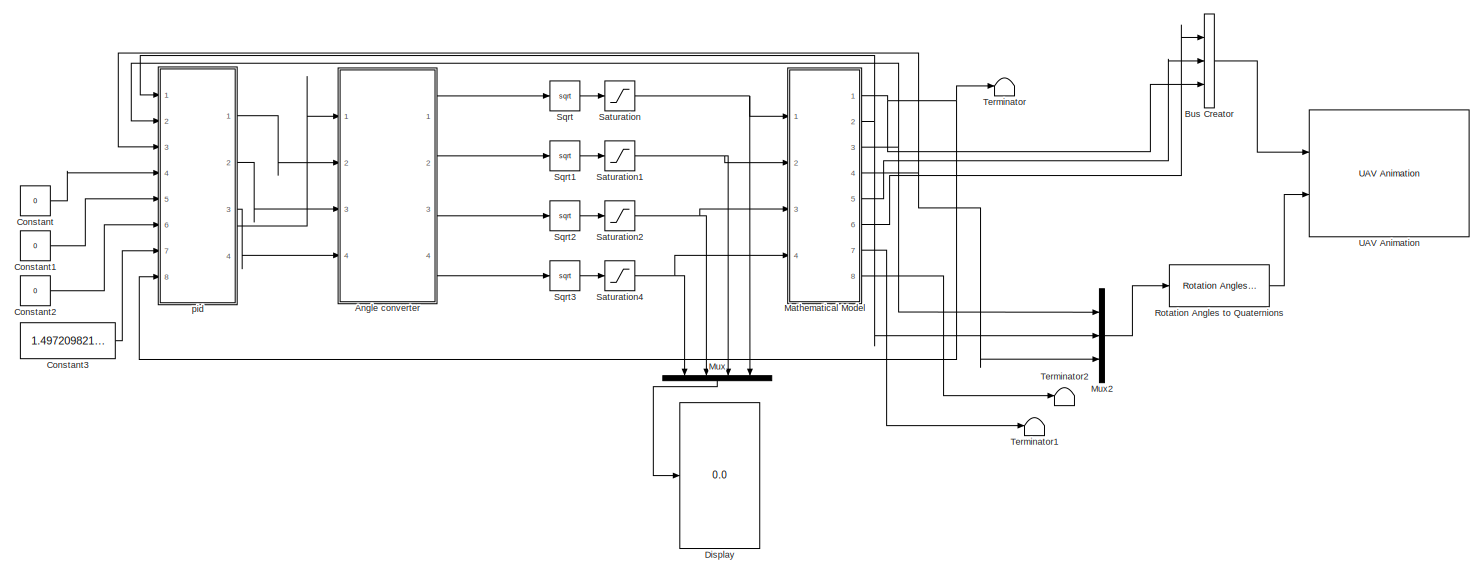
[diagram: root canvas - part 1/2, most of the canvas]
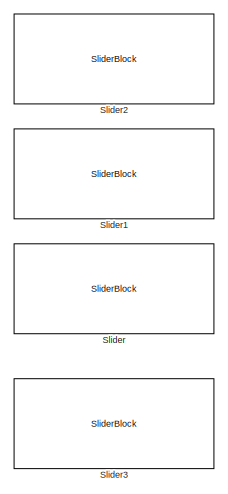
[diagram: root canvas - part 2/2, left side, full height]
MODEL slx_a05d7fcb3b3f
KIND model
CONFIG AbsTol = auto
CONFIG EnableMultiTasking = off
CONFIG FixedStep = auto
CONFIG MaxStep = auto
CONFIG MinStep = auto
CONFIG RelTol = 1e-3
CONFIG SampleTimeConstraint = Unconstrained
CONFIG Solver = VariableStepAuto
CONFIG SolverName = VariableStepAuto
CONFIG StartTime = 0.0
CONFIG StopTime = inf
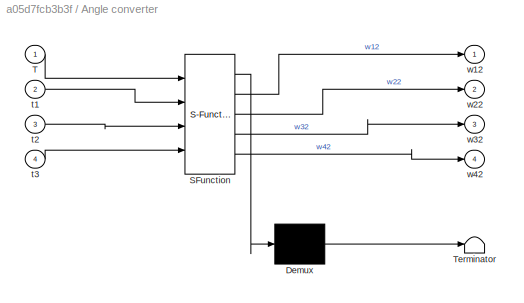
BLOCK [SubSystem] Angle converter
  ErrorFcn = Stateflow.Translate.translate
  PermitHierarchicalResolution = ExplicitOnly
  Ports = [4, 4]
  RequestExecContextInheritance = off
  SFBlockType = MATLAB Function
  TreatAsAtomicUnit = on
BLOCK [Demux] Angle converter/ Demux 
  Outputs = 1
  Ports = [1, 1]
BLOCK [S-Function] Angle converter/ SFunction 
  EnableBusSupport = on
  FunctionName = sf_sfun
  PortCounts = [4 5]
  Ports = [4, 5]
  SFcnIsStateOwnerBlock = off
  SFunctionDeploymentMode = off
  Tag = Stateflow S-Function 4
BLOCK [Terminator] Angle converter/ Terminator 
BLOCK [Inport] Angle converter/T
BLOCK [Inport] Angle converter/t1
  Port = 2
BLOCK [Inport] Angle converter/t2
  Port = 3
BLOCK [Inport] Angle converter/t3
  Port = 4
BLOCK [Outport] Angle converter/w12
BLOCK [Outport] Angle converter/w22
  Port = 2
BLOCK [Outport] Angle converter/w32
  Port = 3
BLOCK [Outport] Angle converter/w42
  Port = 4
BLOCK [BusCreator] Bus Creator
  DisplayOption = bar
  InheritFromInputs = on
  Inputs = 3
  Ports = [3, 1]
BLOCK [Constant] Constant
  Value = 0
BLOCK [Constant] Constant1
  Value = 0
BLOCK [Constant] Constant2
  Value = 0
BLOCK [Constant] Constant3
  Value = 1.497209821428571
BLOCK [Display] Display
  Decimation = 1
  Ports = [1]
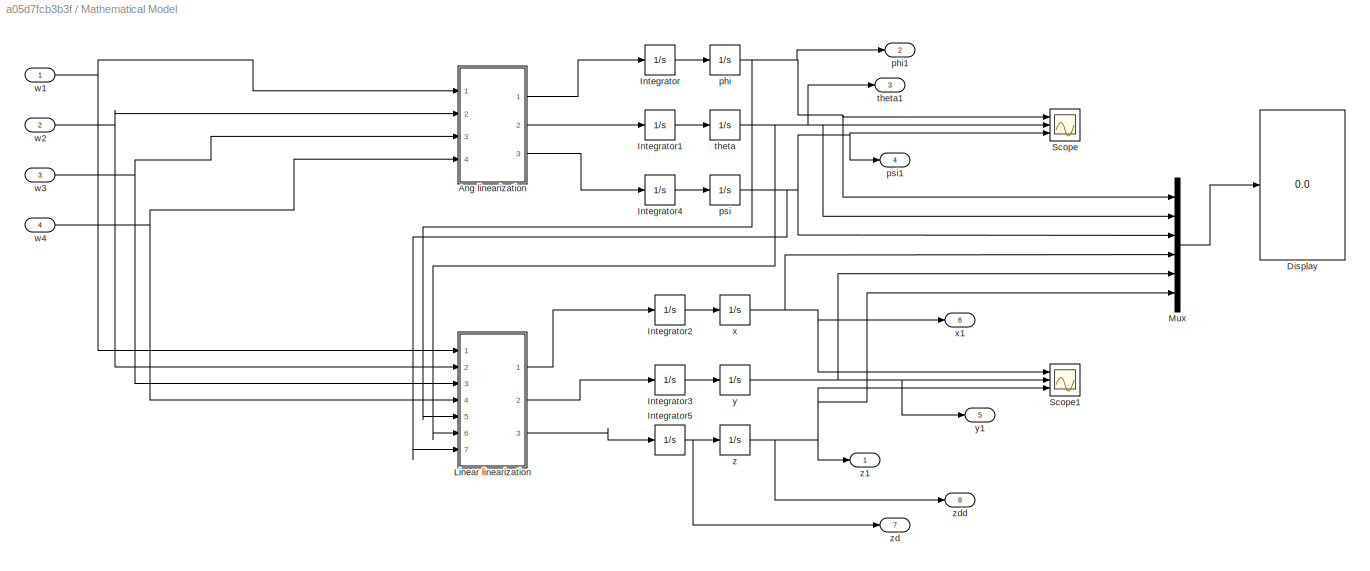
BLOCK [SubSystem] Mathematical Model
  Ports = [4, 8]
  RequestExecContextInheritance = off
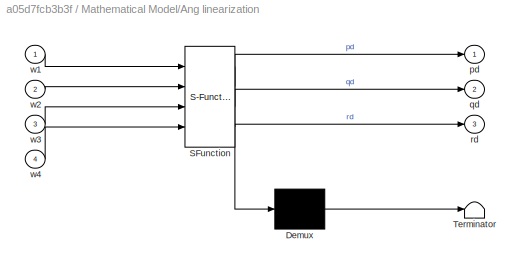
BLOCK [SubSystem] Mathematical Model/Ang linearization
  ErrorFcn = Stateflow.Translate.translate
  PermitHierarchicalResolution = ExplicitOnly
  Ports = [4, 3]
  RequestExecContextInheritance = off
  SFBlockType = MATLAB Function
  TreatAsAtomicUnit = on
BLOCK [Demux] Mathematical Model/Ang linearization/ Demux 
  Outputs = 1
  Ports = [1, 1]
BLOCK [S-Function] Mathematical Model/Ang linearization/ SFunction 
  EnableBusSupport = on
  FunctionName = sf_sfun
  PortCounts = [4 4]
  Ports = [4, 4]
  SFcnIsStateOwnerBlock = off
  SFunctionDeploymentMode = off
  Tag = Stateflow S-Function 2
BLOCK [Terminator] Mathematical Model/Ang linearization/ Terminator 
BLOCK [Outport] Mathematical Model/Ang linearization/pd
BLOCK [Outport] Mathematical Model/Ang linearization/qd
  Port = 2
BLOCK [Outport] Mathematical Model/Ang linearization/rd
  Port = 3
BLOCK [Inport] Mathematical Model/Ang linearization/w1
BLOCK [Inport] Mathematical Model/Ang linearization/w2
  Port = 2
BLOCK [Inport] Mathematical Model/Ang linearization/w3
  Port = 3
BLOCK [Inport] Mathematical Model/Ang linearization/w4
  Port = 4
BLOCK [Display] Mathematical Model/Display
  Decimation = 1
  Ports = [1]
BLOCK [Integrator] Mathematical Model/Integrator
  Ports = [1, 1]
BLOCK [Integrator] Mathematical Model/Integrator1
  Ports = [1, 1]
BLOCK [Integrator] Mathematical Model/Integrator2
  Ports = [1, 1]
BLOCK [Integrator] Mathematical Model/Integrator3
  Ports = [1, 1]
BLOCK [Integrator] Mathematical Model/Integrator4
  Ports = [1, 1]
BLOCK [Integrator] Mathematical Model/Integrator5
  Ports = [1, 1]
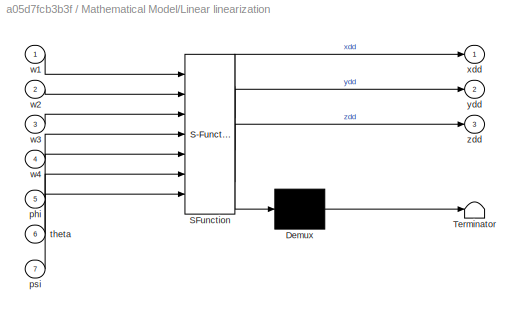
BLOCK [SubSystem] Mathematical Model/Linear linearization
  ErrorFcn = Stateflow.Translate.translate
  PermitHierarchicalResolution = ExplicitOnly
  Ports = [7, 3]
  RequestExecContextInheritance = off
  SFBlockType = MATLAB Function
  TreatAsAtomicUnit = on
BLOCK [Demux] Mathematical Model/Linear linearization/ Demux 
  Outputs = 1
  Ports = [1, 1]
BLOCK [S-Function] Mathematical Model/Linear linearization/ SFunction 
  EnableBusSupport = on
  FunctionName = sf_sfun
  PortCounts = [7 4]
  Ports = [7, 4]
  SFcnIsStateOwnerBlock = off
  SFunctionDeploymentMode = off
  Tag = Stateflow S-Function 1
BLOCK [Terminator] Mathematical Model/Linear linearization/ Terminator 
BLOCK [Inport] Mathematical Model/Linear linearization/phi
  Port = 5
BLOCK [Inport] Mathematical Model/Linear linearization/psi
  Port = 7
BLOCK [Inport] Mathematical Model/Linear linearization/theta
  Port = 6
BLOCK [Inport] Mathematical Model/Linear linearization/w1
BLOCK [Inport] Mathematical Model/Linear linearization/w2
  Port = 2
BLOCK [Inport] Mathematical Model/Linear linearization/w3
  Port = 3
BLOCK [Inport] Mathematical Model/Linear linearization/w4
  Port = 4
BLOCK [Outport] Mathematical Model/Linear linearization/xdd
BLOCK [Outport] Mathematical Model/Linear linearization/ydd
  Port = 2
BLOCK [Outport] Mathematical Model/Linear linearization/zdd
  Port = 3
BLOCK [Mux] Mathematical Model/Mux
  DisplayOption = bar
  Inputs = 6
  Ports = [6, 1]
BLOCK [Scope] Mathematical Model/Scope
  Floating = off
  NumInputPorts = 3
  Ports = [3]
  ScopeSpecificationString = Simulink.scopes.TimeScopeBlockCfg('CurrentConfiguration', extmgr.ConfigurationSet(extmgr.Configuration('Core','General UI',true),extmgr.Configuration('Core','Source UI',true),extmgr.Configuration('Sources','WiredSimulink',true),extmgr.Configuration('Visuals','Time Domain',true,'SerializedDisplays',{struct('MinYLimReal','-1.00000','MaxYLimReal','1.00000','YLabelReal','','MinYLimMag','0.00000','MaxY...<+1368ch>
BLOCK [Scope] Mathematical Model/Scope1
  Floating = off
  NumInputPorts = 3
  Ports = [3]
  ScopeSpecificationString = Simulink.scopes.TimeScopeBlockCfg('CurrentConfiguration', extmgr.ConfigurationSet(extmgr.Configuration('Core','General UI',true),extmgr.Configuration('Core','Source UI',true),extmgr.Configuration('Sources','WiredSimulink',true,'DataLoggingVariableName','ScopeData1'),extmgr.Configuration('Visuals','Time Domain',true,'SerializedDisplays',{struct('MinYLimReal','-382990133158497.0625','MaxYLimReal','3...<+1511ch>
BLOCK [Integrator] Mathematical Model/phi
  Ports = [1, 1]
BLOCK [Outport] Mathematical Model/phi1
  Port = 2
BLOCK [Integrator] Mathematical Model/psi
  Ports = [1, 1]
BLOCK [Outport] Mathematical Model/psi1
  Port = 4
BLOCK [Integrator] Mathematical Model/theta
  Ports = [1, 1]
BLOCK [Outport] Mathematical Model/theta1
  Port = 3
BLOCK [Inport] Mathematical Model/w1
BLOCK [Inport] Mathematical Model/w2
  Port = 2
BLOCK [Inport] Mathematical Model/w3
  Port = 3
BLOCK [Inport] Mathematical Model/w4
  Port = 4
BLOCK [Integrator] Mathematical Model/x
  Ports = [1, 1]
BLOCK [Outport] Mathematical Model/x1
  Port = 6
BLOCK [Integrator] Mathematical Model/y
  Ports = [1, 1]
BLOCK [Outport] Mathematical Model/y1
  Port = 5
BLOCK [Integrator] Mathematical Model/z
  Ports = [1, 1]
BLOCK [Outport] Mathematical Model/z1
BLOCK [Outport] Mathematical Model/zd
  Port = 7
BLOCK [Outport] Mathematical Model/zdd
  Port = 8
BLOCK [Mux] Mux
  DisplayOption = bar
  NameLocation = left
  Ports = [4, 1]
BLOCK [Mux] Mux2
  DisplayOption = bar
  Inputs = 3
  Ports = [3, 1]
BLOCK [Reference] Rotation Angles to Quaternions  REF=sharedtransform/Rotation Angles to Quaternions
  AttributesFormatString = Rotation Order: %<rotationOrder>
  Ports = [1, 1]
  SourceBlock = sharedtransform/Rotation Angles to Quaternions
  SourceProductBaseCode = AE,PW,MT,VE,VP
  SourceType = Ang2Quat
BLOCK [Saturate] Saturation
  LowerLimit = 0
  UpperLimit = 8000
BLOCK [Saturate] Saturation1
  LowerLimit = 0
  UpperLimit = 8000
BLOCK [Saturate] Saturation2
  LowerLimit = 0
  UpperLimit = 8000
BLOCK [Saturate] Saturation4
  LowerLimit = 0
  UpperLimit = 8000
BLOCK [SliderBlock] Slider
  ScaleMax = 0.5236
  ScaleMin = -0.5236
BLOCK [SliderBlock] Slider1
  ScaleMax = 0.5236
  ScaleMin = -0.5236
BLOCK [SliderBlock] Slider2
  ScaleMax = 0.5236
  ScaleMin = -0.5236
BLOCK [SliderBlock] Slider3
  ScaleMax = 10
  ScaleMin = 1
BLOCK [Sqrt] Sqrt
BLOCK [Sqrt] Sqrt1
BLOCK [Sqrt] Sqrt2
BLOCK [Sqrt] Sqrt3
BLOCK [Terminator] Terminator
BLOCK [Terminator] Terminator1
BLOCK [Terminator] Terminator2
BLOCK [Reference] UAV Animation  REF=robotuavlib/UAV Animation
  Ports = [2]
  SourceBlock = robotuavlib/UAV Animation
  SourceProductBaseCode = ROBOTICS_UAV_LIB
  SourceType = robotics.sluav.internal.system.UAVAnimation
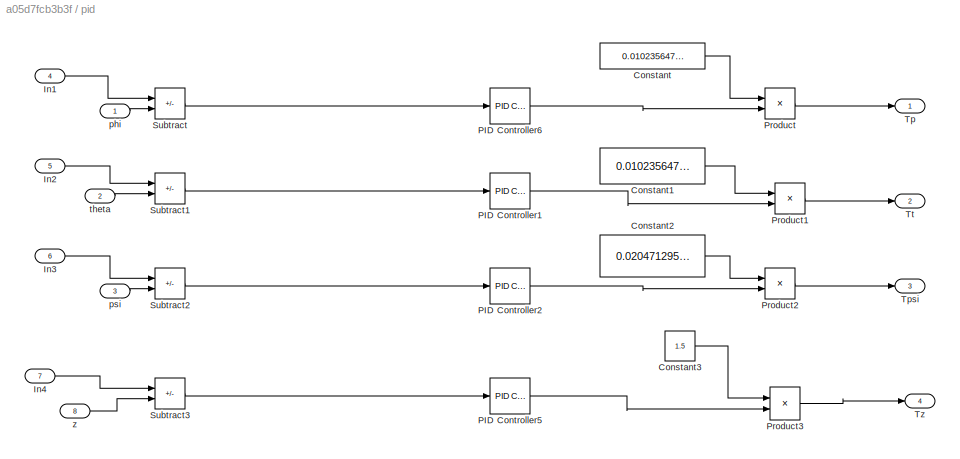
BLOCK [SubSystem] pid
  Ports = [8, 4]
  RequestExecContextInheritance = off
BLOCK [Constant] pid/Constant
  Value = 0.01023564759
BLOCK [Constant] pid/Constant1
  Value = 0.01023564759
BLOCK [Constant] pid/Constant2
  Value = 0.02047129518
BLOCK [Constant] pid/Constant3
  Value = 1.5
BLOCK [Inport] pid/In1
  Port = 4
BLOCK [Inport] pid/In2
  Port = 5
BLOCK [Inport] pid/In3
  Port = 6
BLOCK [Inport] pid/In4
  Port = 7
BLOCK [Reference] pid/PID Controller1  REF=simulink/Continuous/PID Controller
  Ports = [1, 1]
  SourceBlock = simulink/Continuous/PID Controller
  SourceProductBaseCode = SL
  SourceType = PID 1dof
BLOCK [Reference] pid/PID Controller2  REF=simulink/Continuous/PID Controller
  Ports = [1, 1]
  SourceBlock = simulink/Continuous/PID Controller
  SourceProductBaseCode = SL
  SourceType = PID 1dof
BLOCK [Reference] pid/PID Controller5  REF=simulink/Continuous/PID Controller
  Ports = [1, 1]
  SourceBlock = simulink/Continuous/PID Controller
  SourceProductBaseCode = SL
  SourceType = PID 1dof
BLOCK [Reference] pid/PID Controller6  REF=simulink/Continuous/PID Controller
  Ports = [1, 1]
  SourceBlock = simulink/Continuous/PID Controller
  SourceProductBaseCode = SL
  SourceType = PID 1dof
BLOCK [Product] pid/Product
  Ports = [2, 1]
BLOCK [Product] pid/Product1
  Ports = [2, 1]
BLOCK [Product] pid/Product2
  Ports = [2, 1]
BLOCK [Product] pid/Product3
  Ports = [2, 1]
BLOCK [Sum] pid/Subtract
  IconShape = rectangular
  Inputs = +-
  Ports = [2, 1]
BLOCK [Sum] pid/Subtract1
  IconShape = rectangular
  Inputs = +-
  Ports = [2, 1]
BLOCK [Sum] pid/Subtract2
  IconShape = rectangular
  Inputs = +-
  Ports = [2, 1]
BLOCK [Sum] pid/Subtract3
  IconShape = rectangular
  Inputs = +-
  Ports = [2, 1]
BLOCK [Outport] pid/Tp
BLOCK [Outport] pid/Tpsi
  Port = 3
BLOCK [Outport] pid/Tt
  Port = 2
BLOCK [Outport] pid/Tz
  Port = 4
BLOCK [Inport] pid/phi
BLOCK [Inport] pid/psi
  Port = 3
BLOCK [Inport] pid/theta
  Port = 2
BLOCK [Inport] pid/z
  Port = 8
LINE Angle converter:1 -> Sqrt:1
LINE Angle converter:2 -> Sqrt1:1
LINE Angle converter:3 -> Sqrt2:1
LINE Angle converter:4 -> Sqrt3:1
LINE Bus Creator:1 -> UAV Animation:1
LINE Constant1:1 -> pid:5
LINE Constant2:1 -> pid:6
LINE Constant3:1 -> pid:7
LINE Constant:1 -> pid:4
LINE Mathematical Model/Ang linearization:1 -> Mathematical Model/Integrator:1
LINE Mathematical Model/Ang linearization:2 -> Mathematical Model/Integrator1:1
LINE Mathematical Model/Ang linearization:3 -> Mathematical Model/Integrator4:1
LINE Mathematical Model/Integrator1:1 -> Mathematical Model/theta:1
LINE Mathematical Model/Integrator2:1 -> Mathematical Model/x:1
LINE Mathematical Model/Integrator3:1 -> Mathematical Model/y:1
LINE Mathematical Model/Integrator4:1 -> Mathematical Model/psi:1
NET Mathematical Model/Integrator5:1 -> Mathematical Model/z:1, Mathematical Model/zd:1
LINE Mathematical Model/Integrator:1 -> Mathematical Model/phi:1
LINE Mathematical Model/Linear linearization:1 -> Mathematical Model/Integrator2:1
LINE Mathematical Model/Linear linearization:2 -> Mathematical Model/Integrator3:1
LINE Mathematical Model/Linear linearization:3 -> Mathematical Model/Integrator5:1
LINE Mathematical Model/Mux:1 -> Mathematical Model/Display:1
NET Mathematical Model/phi:1 -> Mathematical Model/Linear linearization:5, Mathematical Model/Mux:1, Mathematical Model/Scope:1, Mathematical Model/phi1:1
NET Mathematical Model/psi:1 -> Mathematical Model/Linear linearization:7, Mathematical Model/Mux:3, Mathematical Model/Scope:3, Mathematical Model/psi1:1
NET Mathematical Model/theta:1 -> Mathematical Model/Linear linearization:6, Mathematical Model/Mux:2, Mathematical Model/Scope:2, Mathematical Model/theta1:1
NET Mathematical Model/w1:1 -> Mathematical Model/Ang linearization:1, Mathematical Model/Linear linearization:1
NET Mathematical Model/w2:1 -> Mathematical Model/Ang linearization:2, Mathematical Model/Linear linearization:2
NET Mathematical Model/w3:1 -> Mathematical Model/Ang linearization:3, Mathematical Model/Linear linearization:3
NET Mathematical Model/w4:1 -> Mathematical Model/Ang linearization:4, Mathematical Model/Linear linearization:4
NET Mathematical Model/x:1 -> Mathematical Model/Mux:4, Mathematical Model/Scope1:1, Mathematical Model/x1:1
NET Mathematical Model/y:1 -> Mathematical Model/Mux:5, Mathematical Model/Scope1:2, Mathematical Model/y1:1
NET Mathematical Model/z:1 -> Mathematical Model/Mux:6, Mathematical Model/Scope1:3, Mathematical Model/z1:1, Mathematical Model/zdd:1
NET Mathematical Model:1 -> Bus Creator:3, Terminator:1, pid:8
NET Mathematical Model:2 -> Mux2:2, pid:1
NET Mathematical Model:3 -> Mux2:1, pid:2
NET Mathematical Model:4 -> Mux2:3, pid:3
LINE Mathematical Model:5 -> Bus Creator:2
LINE Mathematical Model:6 -> Bus Creator:1
LINE Mathematical Model:7 -> Terminator1:1
LINE Mathematical Model:8 -> Terminator2:1
LINE Mux2:1 -> Rotation Angles to Quaternions:1
LINE Mux:1 -> Display:1
LINE Rotation Angles to Quaternions:1 -> UAV Animation:2
NET Saturation1:1 -> Mathematical Model:2, Mux:3
NET Saturation2:1 -> Mathematical Model:3, Mux:2
NET Saturation4:1 -> Mathematical Model:4, Mux:1
NET Saturation:1 -> Mathematical Model:1, Mux:4
LINE Sqrt1:1 -> Saturation1:1
LINE Sqrt2:1 -> Saturation2:1
LINE Sqrt3:1 -> Saturation4:1
LINE Sqrt:1 -> Saturation:1
LINE pid/Constant1:1 -> pid/Product1:1
LINE pid/Constant2:1 -> pid/Product2:1
LINE pid/Constant3:1 -> pid/Product3:1
LINE pid/Constant:1 -> pid/Product:1
LINE pid/In1:1 -> pid/Subtract:1
LINE pid/In2:1 -> pid/Subtract1:1
LINE pid/In3:1 -> pid/Subtract2:1
LINE pid/In4:1 -> pid/Subtract3:1
LINE pid/PID Controller1:1 -> pid/Product1:2
LINE pid/PID Controller2:1 -> pid/Product2:2
LINE pid/PID Controller5:1 -> pid/Product3:2
LINE pid/PID Controller6:1 -> pid/Product:2
LINE pid/Product1:1 -> pid/Tt:1
LINE pid/Product2:1 -> pid/Tpsi:1
LINE pid/Product3:1 -> pid/Tz:1
LINE pid/Product:1 -> pid/Tp:1
LINE pid/Subtract1:1 -> pid/PID Controller1:1
LINE pid/Subtract2:1 -> pid/PID Controller2:1
LINE pid/Subtract3:1 -> pid/PID Controller5:1
LINE pid/Subtract:1 -> pid/PID Controller6:1
LINE pid/phi:1 -> pid/Subtract:2
LINE pid/psi:1 -> pid/Subtract2:2
LINE pid/theta:1 -> pid/Subtract1:2
LINE pid/z:1 -> pid/Subtract3:2
LINE pid:1 -> Angle converter:2
LINE pid:2 -> Angle converter:3
LINE pid:3 -> Angle converter:4
LINE pid:4 -> Angle converter:1
note: NET lines group one-source signal fan-out (src -> all destinations, sorted); 1:1 wires keep LINE
CHART Mathematical Model/Linear linearization states=1 transitions=1
  STATE_LABEL 'eML_blk_kernel()'
  STATE_LABEL 'SCRIPT:\nfunction [xdd,ydd,zdd] = fcn(w1,w2,w3,w4,phi,theta,psi)\ng=9.81;\nm=1.5;\nct=8.586e-08;\ntt=ct*(w1^2 + w2^2 + w3^2 + w4^2);\nxdd=(phi*(sin(psi))  + theta*(cos(psi)))*tt/m;\nydd=(theta*(sin(phi)) - phi*(cos(psi)))*tt/m;\n% zdd=-m*g+tt;\nif tt<=m*g\n    zdd=0;\nelse\n    zdd=-m*g+tt;\nend\n'
CHART Mathematical Model/Ang linearization states=1 transitions=1
  STATE_LABEL 'eML_blk_kernel()'
  STATE_LABEL 'SCRIPT:\nfunction [pd,qd,rd] = fcn(w1,w2,w3,w4)\nd=0.176777;ct=8.586e-08;cq=4.81e-09;\nJxx=0.01023564759;Jyy=0.01023564759;Jzz=0.02047129518;\npd=(d*ct*(-w1^2 + w2^2 + w3^2 - w4^2)/(Jxx*1.414));\nqd=(d*ct*(-w1^2 - w2^2 + w3^2 + w4^2)/(Jyy*1.414));\nrd=(cq*(-w1^2 + w2^2 - w3^2 + w4^2)/Jzz);'
CHART Angle converter states=1 transitions=1
  STATE_LABEL 'eML_blk_kernel()'
  STATE_LABEL "SCRIPT:\nfunction [w12,w22,w32,w42]  = fcn(T,t1,t2,t3)\nd=0.176777;ct=8.586e-08;cq=4.81e-09;\nA=[ct ct ct ct; -(d*ct) (d*ct) (d*ct) -(d*ct); -d*ct -d*ct d*ct d*ct;-cq cq -cq cq];\nB=[T t1*1.414 t2*1.414 t3]';\nC=inv(A)*B;\nw12=C(1,1);\nw22=C(2,1);w32=C(3,1);w42=C(4,1);\nif(w12<0)\n    w12=0;\nend\nif(w22<0)\n    w22=0;\nend\nif(w32<0)\n    w32=0;\nend\nif(w42<0)\n    w42=0;\nend\n% T=ct*(a + b + c + e);\n% t1=d*ct*(-a...<+179ch>"
CHART  states=0 transitions=0
CHART  states=0 transitions=0
CHART  states=0 transitions=0
